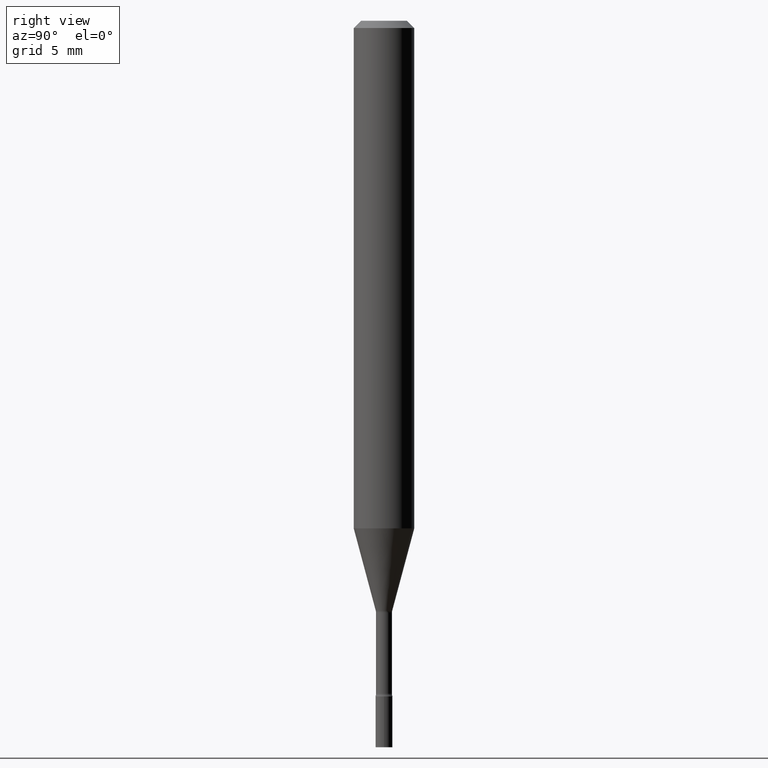
[diagram: clean part render]
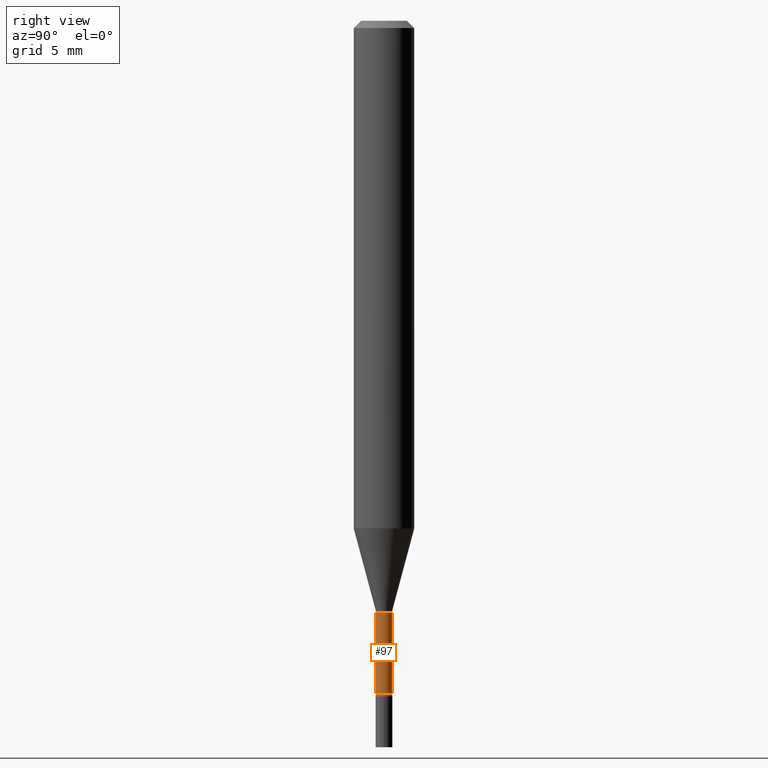
[diagram: same view with one face highlighted and labeled with its STEP entity id]
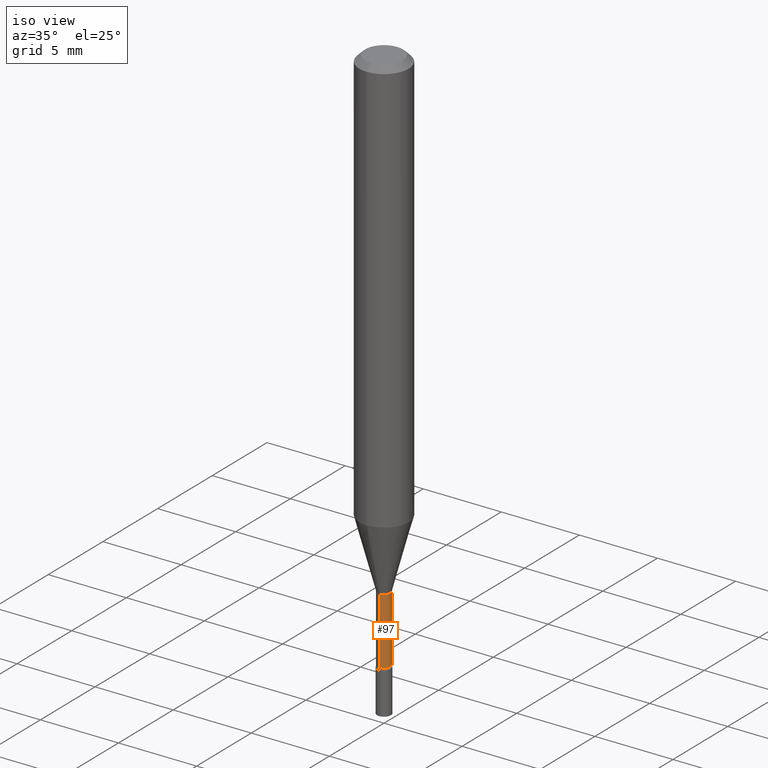
[diagram: same view with one face highlighted and labeled with its STEP entity id]
A machine part, right view. The second image highlights one B-rep face of the part: STEP entity #97.
A second angle (iso view) of the same face is appended — the face is thin or edge-on in the first view.
In plain terms, the highlighted cylindrical surface (edge-blend (fillet) strip) has radius 0.4178 mm, axis along (-0, 0, 1).
Its self-contained STEP definition (entity closure, byte-faithful):
#14 = AXIS2_PLACEMENT_3D ( 'NONE', #175, #92, #291 ) ;
#21 = VERTEX_POINT ( 'NONE', #481 ) ;
#28 = DIRECTION ( 'NONE',  ( -2.445445466582800548E-29, 3.491514762482098518E-15, 1.000000000000000000 ) ) ;
#38 = CYLINDRICAL_SURFACE ( 'NONE', #14, 0.01645000000000003057 ) ;
#41 = AXIS2_PLACEMENT_3D ( 'NONE', #494, #455, #178 ) ;
#79 = ORIENTED_EDGE ( 'NONE', *, *, #208, .T. ) ;
#92 = DIRECTION ( 'NONE',  ( -2.445445466582800548E-29, 3.491514762482098518E-15, 1.000000000000000000 ) ) ;
#97 = ADVANCED_FACE ( 'NONE', ( #127 ), #38, .T. ) ;
#105 = DIRECTION ( 'NONE',  ( -2.445445466582800548E-29, 3.491514762482098912E-15, 1.000000000000000000 ) ) ;
#120 = EDGE_CURVE ( 'NONE', #21, #510, #406, .T. ) ;
#127 = FACE_OUTER_BOUND ( 'NONE', #308, .T. ) ;
#157 = ORIENTED_EDGE ( 'NONE', *, *, #411, .T. ) ;
#162 = CARTESIAN_POINT ( 'NONE',  ( -1.148697360479091982E-16, -0.01645000000000426676, -1.221974787463810941 ) ) ;
#168 = EDGE_CURVE ( 'NONE', #510, #319, #407, .T. ) ;
#175 = CARTESIAN_POINT ( 'NONE',  ( 0.000000000000000000, 0.000000000000000000, 0.000000000000000000 ) ) ;
#176 = CARTESIAN_POINT ( 'NONE',  ( 1.206146293953111284E-16, 0.01644999999999521151, -1.389486607215153491 ) ) ;
#178 = DIRECTION ( 'NONE',  ( -6.982962677686266711E-15, -1.000000000000000000, 0.000000000000000000 ) ) ;
#179 = VECTOR ( 'NONE', #105, 39.37007874015748143 ) ;
#181 = CARTESIAN_POINT ( 'NONE',  ( 1.168842800325366731E-16, 0.01645000000000003057, -5.743541784283063110E-17 ) ) ;
#195 = AXIS2_PLACEMENT_3D ( 'NONE', #386, #28, #422 ) ;
#208 = EDGE_CURVE ( 'NONE', #278, #319, #222, .T. ) ;
#222 = LINE ( 'NONE', #181, #179 ) ;
#232 = ORIENTED_EDGE ( 'NONE', *, *, #120, .F. ) ;
#244 = DIRECTION ( 'NONE',  ( -2.445445466582800548E-29, 3.491514762482098912E-15, 1.000000000000000000 ) ) ;
#278 = VERTEX_POINT ( 'NONE', #176 ) ;
#291 = DIRECTION ( 'NONE',  ( -6.982962677686266711E-15, -1.000000000000000000, 3.491514762482098912E-15 ) ) ;
#308 = EDGE_LOOP ( 'NONE', ( #157, #79, #456, #232 ) ) ;
#319 = VERTEX_POINT ( 'NONE', #462 ) ;
#386 = CARTESIAN_POINT ( 'NONE',  ( 3.397913724491813318E-29, -4.851413001362873898E-15, -1.389486607215153491 ) ) ;
#401 = VECTOR ( 'NONE', #244, 39.37007874015748143 ) ;
#406 = LINE ( 'NONE', #492, #401 ) ;
#407 = CIRCLE ( 'NONE', #41, 0.01644999999999999934 ) ;
#411 = EDGE_CURVE ( 'NONE', #21, #278, #460, .T. ) ;
#422 = DIRECTION ( 'NONE',  ( -6.982962677686266711E-15, -1.000000000000000000, 0.000000000000000000 ) ) ;
#455 = DIRECTION ( 'NONE',  ( -2.445445466582800548E-29, 3.491514762482098518E-15, 1.000000000000000000 ) ) ;
#456 = ORIENTED_EDGE ( 'NONE', *, *, #168, .F. ) ;
#460 = CIRCLE ( 'NONE', #195, 0.01645000000000006180 ) ;
#462 = CARTESIAN_POINT ( 'NONE',  ( 1.168842800325705942E-16, 0.01644999999999573539, -1.221974787463810941 ) ) ;
#481 = CARTESIAN_POINT ( 'NONE',  ( -1.148697360479055251E-16, -0.01645000000000491208, -1.389486607215153491 ) ) ;
#492 = CARTESIAN_POINT ( 'NONE',  ( -1.148697360479392982E-16, -0.01645000000000003057, 5.743541784283063110E-17 ) ) ;
#494 = CARTESIAN_POINT ( 'NONE',  ( 2.988272704281857866E-29, -4.266543009810820460E-15, -1.221974787463810941 ) ) ;
#510 = VERTEX_POINT ( 'NONE', #162 ) ;